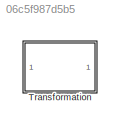
MODEL slx_06c5f987d5b5
KIND model
CONFIG AbsTol = auto
CONFIG EnableMultiTasking = off
CONFIG FixedStep = auto
CONFIG MaxStep = auto
CONFIG MinStep = auto
CONFIG RelTol = 1e-3
CONFIG SampleTimeConstraint = Unconstrained
CONFIG SolverName = VariableStepAuto
CONFIG StartTime = 0.0
CONFIG StopTime = 10.0
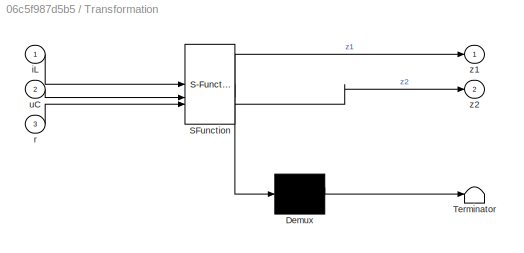
BLOCK [SubSystem] Transformation
  ErrorFcn = Stateflow.Translate.translate
  LibrarySourceBlock = simulink/User-Defined\nFunctions/MATLAB Function
  PermitHierarchicalResolution = ExplicitOnly
  SFBlockType = MATLAB Function
  TreatAsAtomicUnit = on
BLOCK [Demux] Transformation/ Demux 
  Outputs = 1
BLOCK [S-Function] Transformation/ SFunction 
  EnableBusSupport = off
  FunctionName = sf_sfun
  PortCounts = [3 3]
  SFcnIsStateOwnerBlock = off
  SFunctionDeploymentMode = off
  Tag = Stateflow S-Function 2
BLOCK [Terminator] Transformation/ Terminator 
BLOCK [Inport] Transformation/iL
BLOCK [Inport] Transformation/r
  Port = 3
BLOCK [Inport] Transformation/uC
  Port = 2
BLOCK [Outport] Transformation/z1
BLOCK [Outport] Transformation/z2
  Port = 2
CHART Transformation states=1 transitions=1
  STATE_LABEL 'eML_blk_kernel()'
  STATE_LABEL 'SCRIPT:\nfunction [z1, z2] = T(iL, uC, r)\nE = 12; %V\nR = 52; %Omh\nL = 0.01591; %H\nC = 0.000470; %F \n\nuCe = r;\nue = -(uCe)/(E-uCe);\niLe = -uCe/R/(1-ue);\n\ngamma = L*1/2*iLe^2 + C*1/2*(uCe - E)^2;\ngamma = -gamma;\n\n% z1 = h(x)\nz1 = L*1/2*iL^2 + C*1/2*uC^2 + gamma;\n% z2 = Lf h(x)\nz2 = E*(iL + uC/R) - uC/R*uC;\n'
CHART  states=0 transitions=0
